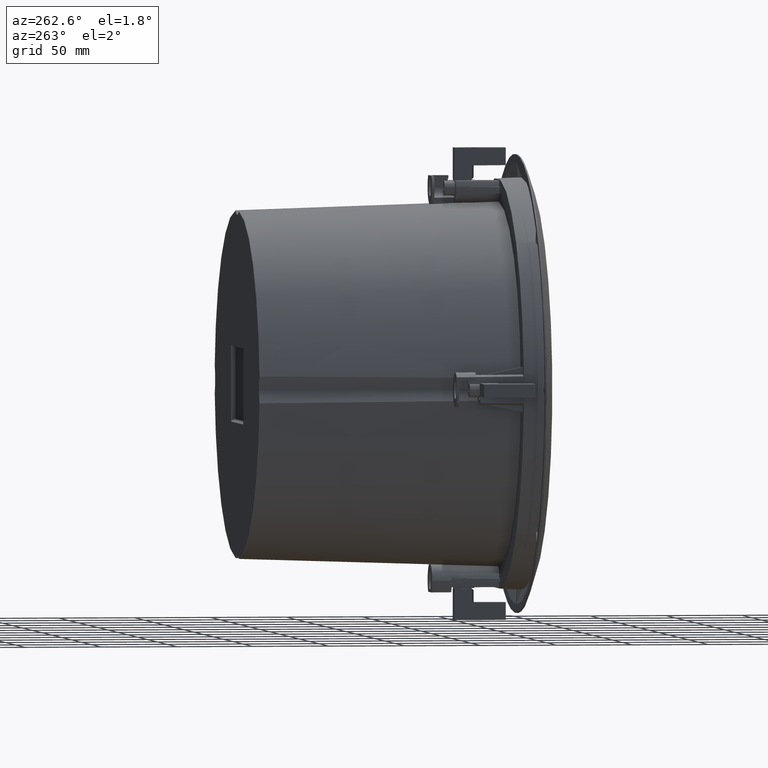
[diagram: clean part render]
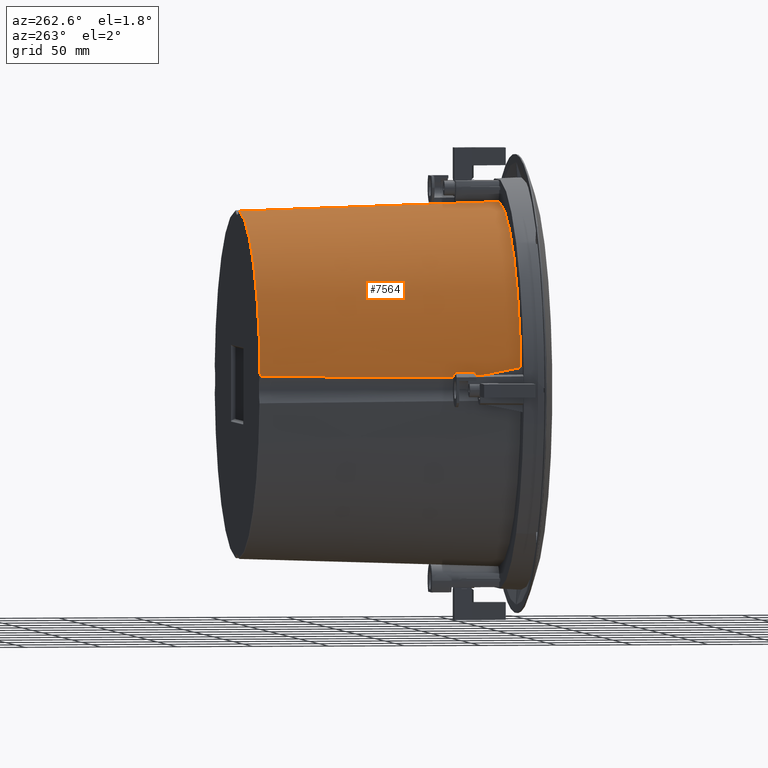
[diagram: same view with one face highlighted and labeled with its STEP entity id]
A machine part, auxiliary view. The second image highlights one B-rep face of the part: STEP entity #7564.
In plain terms, the highlighted conical surface has half-angle 1.8 deg.
Its self-contained STEP definition (entity closure, byte-faithful):
#509 = CARTESIAN_POINT ( 'NONE',  ( -7.315854102144893290, -2.984294620478879612, 119.2596123649675661 ) ) ;
#733 = ORIENTED_EDGE ( 'NONE', *, *, #12964, .T. ) ;
#1347 = EDGE_CURVE ( 'NONE', #16132, #12547, #17769, .T. ) ;
#2422 = DIRECTION ( 'NONE',  ( 0.0000000000000000000, -1.000000000000000000, 0.0000000000000000000 ) ) ;
#2903 = AXIS2_PLACEMENT_3D ( 'NONE', #7476, #2422, #8970 ) ;
#3201 = CARTESIAN_POINT ( 'NONE',  ( -1.551721756192795927E-27, -2.984294620478056270, 0.0000000000000000000 ) ) ;
#3381 = ORIENTED_EDGE ( 'NONE', *, *, #1347, .T. ) ;
#3401 = FACE_OUTER_BOUND ( 'NONE', #4953, .T. ) ;
#3978 = CARTESIAN_POINT ( 'NONE',  ( -117.3975739875691175, 55.01495882583033392, 7.901277064130046490 ) ) ;
#3979 = B_SPLINE_CURVE_WITH_KNOTS ( 'NONE', 3,
 ( #10449, #16971, #3978, #15467 ),
 .UNSPECIFIED., .F., .F.,
 ( 4, 4 ),
 ( 0.0000000000000000000, 0.1740962512432814302 ),
 .UNSPECIFIED. ) ;
#4253 = CARTESIAN_POINT ( 'NONE',  ( -8.827261317282809827, 171.0157053795211652, 113.6733994843866640 ) ) ;
#4905 = CONICAL_SURFACE ( 'NONE', #14826, 119.5000000000000142, 0.03141592650000001735 ) ;
#4908 = VERTEX_POINT ( 'NONE', #15955 ) ;
#4953 = EDGE_LOOP ( 'NONE', ( #3381, #733, #18930, #13730 ) ) ;
#7476 = CARTESIAN_POINT ( 'NONE',  ( -1.551721756192795927E-27, 171.0157053795211652, 0.0000000000000000000 ) ) ;
#7564 = ADVANCED_FACE ( 'NONE', ( #3401 ), #4905, .T. ) ;
#7597 = CARTESIAN_POINT ( 'NONE',  ( -7.315854102144893290, -2.984294620478879612, 119.2596123649675661 ) ) ;
#7767 = CIRCLE ( 'NONE', #2903, 114.0156230202710219 ) ;
#7785 = B_SPLINE_CURVE_WITH_KNOTS ( 'NONE', 3,
 ( #7597, #18932, #19042, #4253 ),
 .UNSPECIFIED., .F., .F.,
 ( 4, 4 ),
 ( 0.0000000000000000000, 0.1740962355440287546 ),
 .UNSPECIFIED. ) ;
#8522 = AXIS2_PLACEMENT_3D ( 'NONE', #3201, #9661, #17573 ) ;
#8970 = DIRECTION ( 'NONE',  ( 0.0000000000000000000, 0.0000000000000000000, -1.000000000000000000 ) ) ;
#9661 = DIRECTION ( 'NONE',  ( -0.0000000000000000000, 1.000000000000000000, 0.0000000000000000000 ) ) ;
#9920 = CARTESIAN_POINT ( 'NONE',  ( -113.6733994843866782, 171.0157053795211652, 8.827261317283063846 ) ) ;
#10449 = CARTESIAN_POINT ( 'NONE',  ( -113.6733994843866782, 171.0157053795211652, 8.827261317283063846 ) ) ;
#10509 = EDGE_CURVE ( 'NONE', #4908, #11310, #7767, .T. ) ;
#11286 = CARTESIAN_POINT ( 'NONE',  ( -1.551721756192795927E-27, -3.500000000000075051, 0.0000000000000000000 ) ) ;
#11310 = VERTEX_POINT ( 'NONE', #9920 ) ;
#12037 = CARTESIAN_POINT ( 'NONE',  ( -119.2596123649675803, -2.984294620478879612, 7.315854102145181059 ) ) ;
#12224 = DIRECTION ( 'NONE',  ( 0.0000000000000000000, 0.0000000000000000000, -1.000000000000000000 ) ) ;
#12547 = VERTEX_POINT ( 'NONE', #509 ) ;
#12964 = EDGE_CURVE ( 'NONE', #12547, #4908, #7785, .T. ) ;
#13730 = ORIENTED_EDGE ( 'NONE', *, *, #19300, .T. ) ;
#14826 = AXIS2_PLACEMENT_3D ( 'NONE', #11286, #16934, #12224 ) ;
#15467 = CARTESIAN_POINT ( 'NONE',  ( -119.2596123649675803, -2.984294620478879612, 7.315854102145181059 ) ) ;
#15955 = CARTESIAN_POINT ( 'NONE',  ( -8.827261317282809827, 171.0157053795211652, 113.6733994843866640 ) ) ;
#16132 = VERTEX_POINT ( 'NONE', #12037 ) ;
#16934 = DIRECTION ( 'NONE',  ( 0.0000000000000000000, -1.000000000000000000, 0.0000000000000000000 ) ) ;
#16971 = CARTESIAN_POINT ( 'NONE',  ( -115.5354976069326369, 113.0151405949131345, 8.391106470681117813 ) ) ;
#17573 = DIRECTION ( 'NONE',  ( 0.0000000000000000000, 0.0000000000000000000, 1.000000000000000000 ) ) ;
#17769 = CIRCLE ( 'NONE', #8522, 119.4837933055617043 ) ;
#18930 = ORIENTED_EDGE ( 'NONE', *, *, #10509, .T. ) ;
#18932 = CARTESIAN_POINT ( 'NONE',  ( -7.901277108929490645, 55.01496326424556571, 117.3975738450758968 ) ) ;
#19042 = CARTESIAN_POINT ( 'NONE',  ( -8.391106451547438283, 113.0151380505228644, 115.5354976886198415 ) ) ;
#19300 = EDGE_CURVE ( 'NONE', #11310, #16132, #3979, .T. ) ;